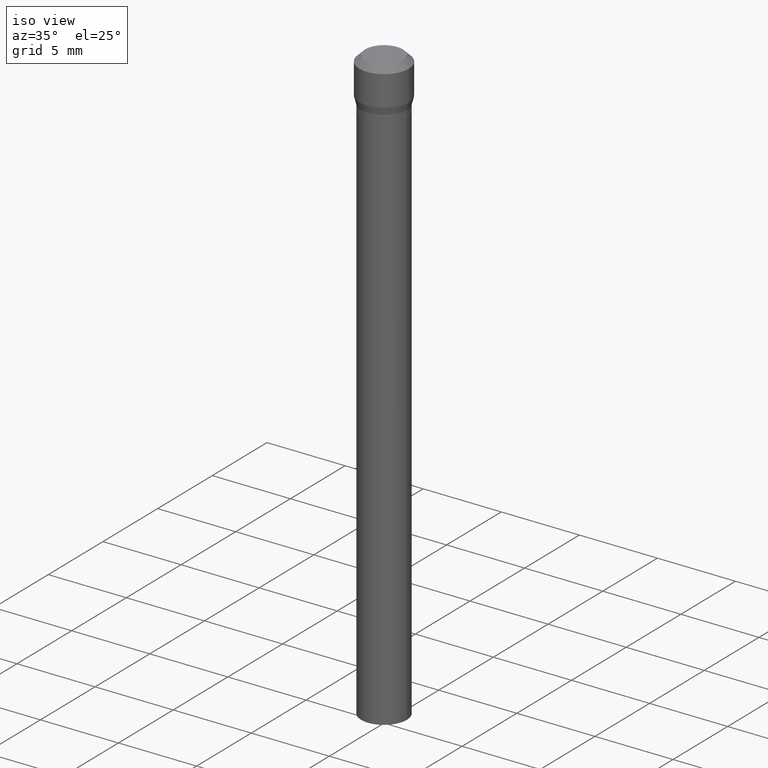
[diagram: clean part render]
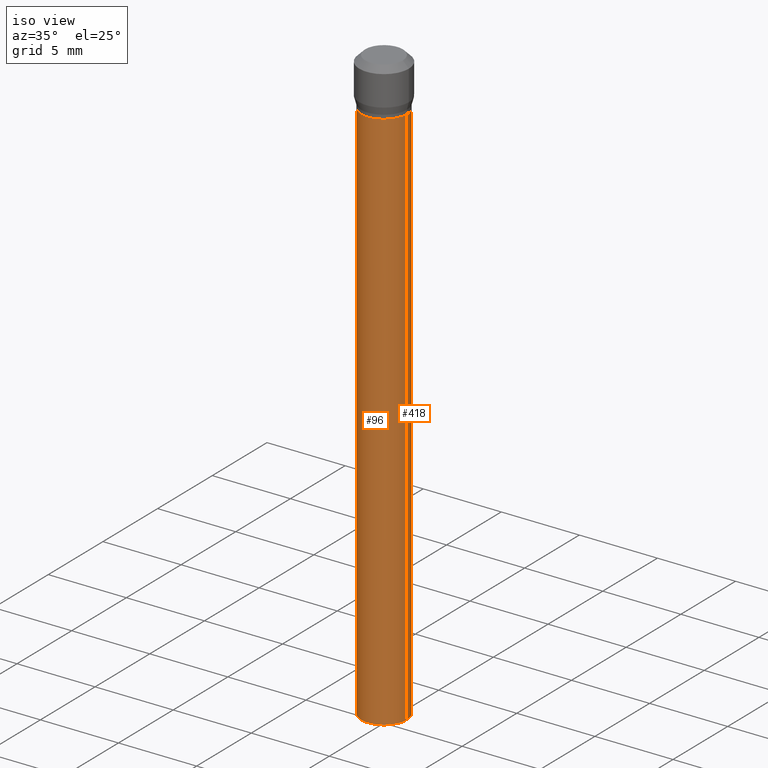
[diagram: same view with one multi-face feature highlighted, each face labeled with its STEP entity id]
A machine part, iso view. The highlighted faces form ONE feature: a constant-radius fillet chain: 2 tangent blend faces with common blend radius 1.4605 mm. The faces share edges in the B-rep.
Their STEP definitions:
[1] entity #96 (Cylinder):
#2 = CARTESIAN_POINT ( 'NONE',  ( 0.05750000000000000250, -4.015203539669603161E-16, 2.803801646082662941E-30 ) ) ;
#15 = LINE ( 'NONE', #25, #371 ) ;
#25 = CARTESIAN_POINT ( 'NONE',  ( -0.05750000000000000250, 4.085620730620576246E-16, -2.828387676896570712E-30 ) ) ;
#32 = ORIENTED_EDGE ( 'NONE', *, *, #219, .T. ) ;
#48 = EDGE_CURVE ( 'NONE', #60, #132, #364, .T. ) ;
#54 = CARTESIAN_POINT ( 'NONE',  ( 3.668203209277704895E-29, -5.237222008264718177E-15, -1.500000000000000222 ) ) ;
#60 = VERTEX_POINT ( 'NONE', #236 ) ;
#66 = DIRECTION ( 'NONE',  ( 1.000000000000000000, -6.982962677686265922E-15, 0.000000000000000000 ) ) ;
#96 = ADVANCED_FACE ( 'NONE', ( #376 ), #135, .T. ) ;
#101 = VERTEX_POINT ( 'NONE', #304 ) ;
#108 = LINE ( 'NONE', #2, #321 ) ;
#117 = AXIS2_PLACEMENT_3D ( 'NONE', #342, #354, #308 ) ;
#122 = CARTESIAN_POINT ( 'NONE',  ( -0.05750000000000000250, -2.419537811400891013E-15, -1.500000000000000222 ) ) ;
#125 = AXIS2_PLACEMENT_3D ( 'NONE', #54, #295, #408 ) ;
#128 = EDGE_CURVE ( 'NONE', #101, #132, #108, .T. ) ;
#132 = VERTEX_POINT ( 'NONE', #380 ) ;
#135 = CYLINDRICAL_SURFACE ( 'NONE', #117, 0.05750000000000000250 ) ;
#146 = ORIENTED_EDGE ( 'NONE', *, *, #128, .T. ) ;
#174 = VERTEX_POINT ( 'NONE', #122 ) ;
#187 = AXIS2_PLACEMENT_3D ( 'NONE', #378, #383, #66 ) ;
#219 = EDGE_CURVE ( 'NONE', #174, #101, #285, .T. ) ;
#235 = DIRECTION ( 'NONE',  ( -2.445468806185136877E-29, 3.491481338843145188E-15, 1.000000000000000000 ) ) ;
#236 = CARTESIAN_POINT ( 'NONE',  ( -0.05750000000000000250, -2.419537811400891013E-15, -0.1200000000000003564 ) ) ;
#285 = CIRCLE ( 'NONE', #125, 0.05750000000000000250 ) ;
#295 = DIRECTION ( 'NONE',  ( -2.445468806185136597E-29, 3.491481338843145583E-15, 1.000000000000000000 ) ) ;
#304 = CARTESIAN_POINT ( 'NONE',  ( 0.05750000000000000250, -5.638742362231678986E-15, -1.500000000000000222 ) ) ;
#308 = DIRECTION ( 'NONE',  ( 1.000000000000000000, -6.982962677686265922E-15, 4.876176775795935232E-29 ) ) ;
#317 = EDGE_CURVE ( 'NONE', #174, #60, #15, .T. ) ;
#321 = VECTOR ( 'NONE', #235, 39.37007874015748143 ) ;
#326 = DIRECTION ( 'NONE',  ( -2.445468806185136877E-29, 3.491481338843145188E-15, 1.000000000000000000 ) ) ;
#342 = CARTESIAN_POINT ( 'NONE',  ( 0.000000000000000000, 0.000000000000000000, 0.000000000000000000 ) ) ;
#346 = ORIENTED_EDGE ( 'NONE', *, *, #317, .F. ) ;
#352 = EDGE_LOOP ( 'NONE', ( #346, #32, #146, #413 ) ) ;
#354 = DIRECTION ( 'NONE',  ( -2.445468806185136597E-29, 3.491481338843145583E-15, 1.000000000000000000 ) ) ;
#364 = CIRCLE ( 'NONE', #187, 0.05750000000000000250 ) ;
#371 = VECTOR ( 'NONE', #326, 39.37007874015748143 ) ;
#376 = FACE_OUTER_BOUND ( 'NONE', #352, .T. ) ;
#378 = CARTESIAN_POINT ( 'NONE',  ( 2.934562567422172828E-30, -4.189777606611787045E-16, -0.1200000000000003564 ) ) ;
#380 = CARTESIAN_POINT ( 'NONE',  ( 0.05750000000000000250, -8.204981146281390206E-16, -0.1200000000000003564 ) ) ;
#383 = DIRECTION ( 'NONE',  ( -2.445468806185136597E-29, 3.491481338843145583E-15, 1.000000000000000000 ) ) ;
#408 = DIRECTION ( 'NONE',  ( 1.000000000000000000, -6.982962677686273810E-15, 0.000000000000000000 ) ) ;
#413 = ORIENTED_EDGE ( 'NONE', *, *, #48, .F. ) ;
[2] entity #418 (Cylinder):
#2 = CARTESIAN_POINT ( 'NONE',  ( 0.05750000000000000250, -4.015203539669603161E-16, 2.803801646082662941E-30 ) ) ;
#5 = AXIS2_PLACEMENT_3D ( 'NONE', #64, #353, #167 ) ;
#15 = LINE ( 'NONE', #25, #371 ) ;
#25 = CARTESIAN_POINT ( 'NONE',  ( -0.05750000000000000250, 4.085620730620576246E-16, -2.828387676896570712E-30 ) ) ;
#26 = EDGE_CURVE ( 'NONE', #132, #60, #256, .T. ) ;
#47 = CIRCLE ( 'NONE', #278, 0.05750000000000000250 ) ;
#52 = CARTESIAN_POINT ( 'NONE',  ( 3.668203209277704895E-29, -5.237222008264718177E-15, -1.500000000000000222 ) ) ;
#55 = ORIENTED_EDGE ( 'NONE', *, *, #128, .F. ) ;
#60 = VERTEX_POINT ( 'NONE', #236 ) ;
#64 = CARTESIAN_POINT ( 'NONE',  ( 0.000000000000000000, 0.000000000000000000, 0.000000000000000000 ) ) ;
#75 = AXIS2_PLACEMENT_3D ( 'NONE', #416, #311, #389 ) ;
#84 = ORIENTED_EDGE ( 'NONE', *, *, #26, .F. ) ;
#98 = FACE_OUTER_BOUND ( 'NONE', #251, .T. ) ;
#101 = VERTEX_POINT ( 'NONE', #304 ) ;
#107 = ORIENTED_EDGE ( 'NONE', *, *, #329, .T. ) ;
#108 = LINE ( 'NONE', #2, #321 ) ;
#122 = CARTESIAN_POINT ( 'NONE',  ( -0.05750000000000000250, -2.419537811400891013E-15, -1.500000000000000222 ) ) ;
#128 = EDGE_CURVE ( 'NONE', #101, #132, #108, .T. ) ;
#129 = CYLINDRICAL_SURFACE ( 'NONE', #5, 0.05750000000000000250 ) ;
#132 = VERTEX_POINT ( 'NONE', #380 ) ;
#167 = DIRECTION ( 'NONE',  ( 1.000000000000000000, -6.982962677686265922E-15, 4.876176775795935232E-29 ) ) ;
#174 = VERTEX_POINT ( 'NONE', #122 ) ;
#192 = DIRECTION ( 'NONE',  ( -2.445468806185136597E-29, 3.491481338843145583E-15, 1.000000000000000000 ) ) ;
#228 = ORIENTED_EDGE ( 'NONE', *, *, #317, .T. ) ;
#235 = DIRECTION ( 'NONE',  ( -2.445468806185136877E-29, 3.491481338843145188E-15, 1.000000000000000000 ) ) ;
#236 = CARTESIAN_POINT ( 'NONE',  ( -0.05750000000000000250, -2.419537811400891013E-15, -0.1200000000000003564 ) ) ;
#251 = EDGE_LOOP ( 'NONE', ( #107, #228, #84, #55 ) ) ;
#256 = CIRCLE ( 'NONE', #75, 0.05750000000000000250 ) ;
#278 = AXIS2_PLACEMENT_3D ( 'NONE', #52, #192, #330 ) ;
#304 = CARTESIAN_POINT ( 'NONE',  ( 0.05750000000000000250, -5.638742362231678986E-15, -1.500000000000000222 ) ) ;
#311 = DIRECTION ( 'NONE',  ( -2.445468806185136597E-29, 3.491481338843145583E-15, 1.000000000000000000 ) ) ;
#317 = EDGE_CURVE ( 'NONE', #174, #60, #15, .T. ) ;
#321 = VECTOR ( 'NONE', #235, 39.37007874015748143 ) ;
#326 = DIRECTION ( 'NONE',  ( -2.445468806185136877E-29, 3.491481338843145188E-15, 1.000000000000000000 ) ) ;
#329 = EDGE_CURVE ( 'NONE', #101, #174, #47, .T. ) ;
#330 = DIRECTION ( 'NONE',  ( 1.000000000000000000, -6.982962677686273810E-15, 0.000000000000000000 ) ) ;
#353 = DIRECTION ( 'NONE',  ( -2.445468806185136597E-29, 3.491481338843145583E-15, 1.000000000000000000 ) ) ;
#371 = VECTOR ( 'NONE', #326, 39.37007874015748143 ) ;
#380 = CARTESIAN_POINT ( 'NONE',  ( 0.05750000000000000250, -8.204981146281390206E-16, -0.1200000000000003564 ) ) ;
#389 = DIRECTION ( 'NONE',  ( 1.000000000000000000, -6.982962677686265922E-15, 0.000000000000000000 ) ) ;
#416 = CARTESIAN_POINT ( 'NONE',  ( 2.934562567422172828E-30, -4.189777606611787045E-16, -0.1200000000000003564 ) ) ;
#418 = ADVANCED_FACE ( 'NONE', ( #98 ), #129, .T. ) ;